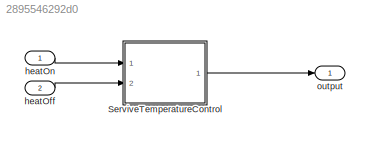
MODEL slx_2895546292d0
KIND model
CONFIG AbsTol = auto
CONFIG EnableMultiTasking = off
CONFIG FixedStep = auto
CONFIG MaxStep = auto
CONFIG MinStep = auto
CONFIG RelTol = 1e-3
CONFIG SampleTimeConstraint = Unconstrained
CONFIG Solver = VariableStepAuto
CONFIG SolverName = VariableStepAuto
CONFIG StartTime = 0.0
CONFIG StopTime = 10.0
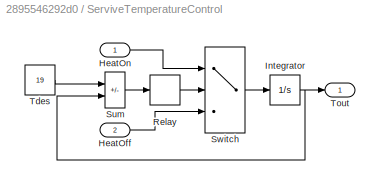
BLOCK [SubSystem] ServiveTemperatureControl
  Ports = [2, 1]
  RequestExecContextInheritance = off
BLOCK [Inport] ServiveTemperatureControl/HeatOff
  Port = 2
BLOCK [Inport] ServiveTemperatureControl/HeatOn
  NameLocation = top
BLOCK [Integrator] ServiveTemperatureControl/Integrator
  Ports = [1, 1]
BLOCK [Relay] ServiveTemperatureControl/Relay
  OffSwitchValue = -0.5
  OnSwitchValue = 0.5
BLOCK [Sum] ServiveTemperatureControl/Sum
  IconShape = rectangular
  Inputs = +-
  Ports = [2, 1]
BLOCK [Switch] ServiveTemperatureControl/Switch
  Criteria = u2 > Threshold
  InputSameDT = off
  SaturateOnIntegerOverflow = off
BLOCK [Constant] ServiveTemperatureControl/Tdes
  Value = 19
BLOCK [Outport] ServiveTemperatureControl/Tout
BLOCK [Inport] heatOff
  Port = 2
BLOCK [Inport] heatOn
  NameLocation = top
BLOCK [Outport] output
LINE ServiveTemperatureControl/HeatOff:1 -> ServiveTemperatureControl/Switch:3
LINE ServiveTemperatureControl/HeatOn:1 -> ServiveTemperatureControl/Switch:1
NET ServiveTemperatureControl/Integrator:1 -> ServiveTemperatureControl/Sum:2, ServiveTemperatureControl/Tout:1
LINE ServiveTemperatureControl/Relay:1 -> ServiveTemperatureControl/Switch:2
LINE ServiveTemperatureControl/Sum:1 -> ServiveTemperatureControl/Relay:1
LINE ServiveTemperatureControl/Switch:1 -> ServiveTemperatureControl/Integrator:1
LINE ServiveTemperatureControl/Tdes:1 -> ServiveTemperatureControl/Sum:1
LINE ServiveTemperatureControl:1 -> output:1
LINE heatOff:1 -> ServiveTemperatureControl:2
LINE heatOn:1 -> ServiveTemperatureControl:1
note: NET lines group one-source signal fan-out (src -> all destinations, sorted); 1:1 wires keep LINE
